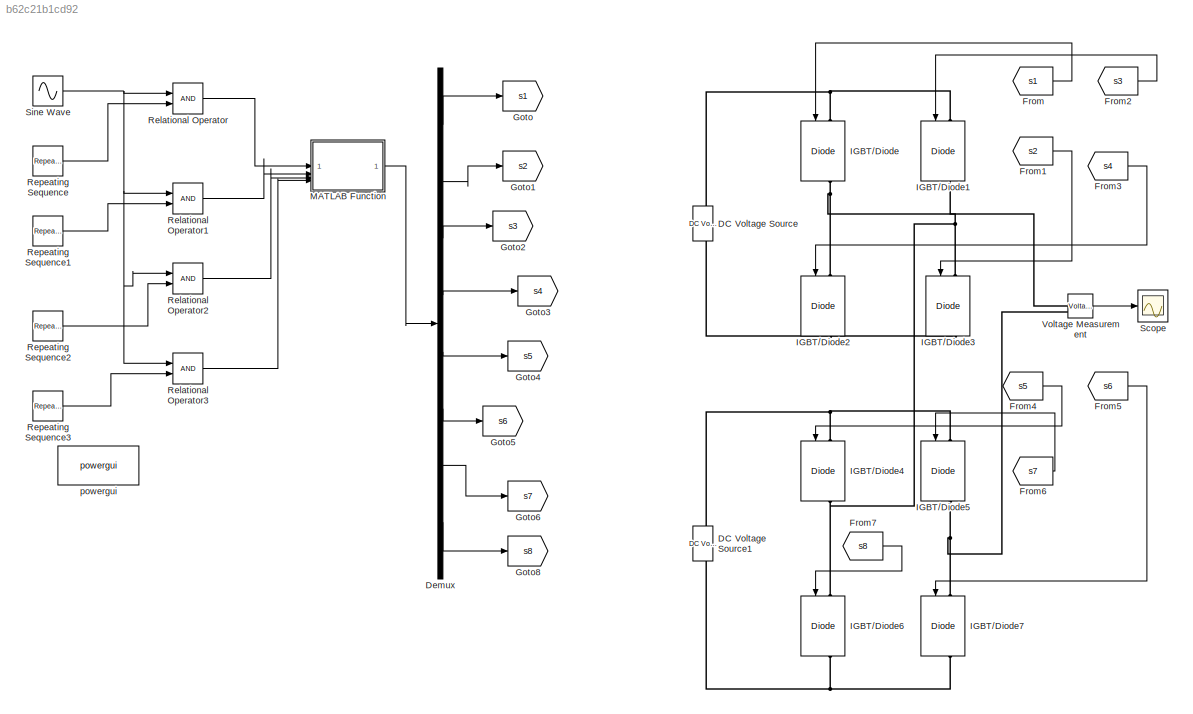
MODEL slx_b62c21b1cd92
KIND model
CONFIG AbsTol = auto
CONFIG EnableMultiTasking = off
CONFIG FixedStep = 5e-5
CONFIG MaxStep = auto
CONFIG MinStep = auto
CONFIG RelTol = 1e-3
CONFIG SampleTimeConstraint = Unconstrained
CONFIG SolverName = ode3
CONFIG StartTime = 0.0
CONFIG StopTime = 0.5
BLOCK [Reference] DC Voltage Source  REF=spsDCVoltageSourceLib/DC Voltage Source
  LibrarySourceBlock = sps_lib/Sources/DC Voltage Source
  SourceBlock = spsDCVoltageSourceLib/DC Voltage Source
  SourceType = DC Voltage Source
BLOCK [Reference] DC Voltage Source1  REF=spsDCVoltageSourceLib/DC Voltage Source
  LibrarySourceBlock = sps_lib/Sources/DC Voltage Source
  SourceBlock = spsDCVoltageSourceLib/DC Voltage Source
  SourceType = DC Voltage Source
BLOCK [Demux] Demux
  Outputs = 8
BLOCK [From] From
  GotoTag = s1
BLOCK [From] From1
  GotoTag = s2
BLOCK [From] From2
  GotoTag = s3
BLOCK [From] From3
  GotoTag = s4
BLOCK [From] From4
  GotoTag = s5
BLOCK [From] From5
  GotoTag = s6
BLOCK [From] From6
  GotoTag = s7
BLOCK [From] From7
  GotoTag = s8
BLOCK [Goto] Goto
  GotoTag = s1
BLOCK [Goto] Goto1
  GotoTag = s2
BLOCK [Goto] Goto2
  GotoTag = s3
BLOCK [Goto] Goto3
  GotoTag = s4
BLOCK [Goto] Goto4
  GotoTag = s5
BLOCK [Goto] Goto5
  GotoTag = s6
BLOCK [Goto] Goto6
  GotoTag = s7
BLOCK [Goto] Goto8
  GotoTag = s8
BLOCK [Reference] IGBT//Diode  REF=spsIGBTDiodeLib/IGBT//Diode
  LibrarySourceBlock = sps_lib/Power Electronics/IGBT//Diode
  NameLocation = left
  SourceBlock = spsIGBTDiodeLib/IGBT//Diode
  SourceType = IGBT/Diode
BLOCK [Reference] IGBT//Diode1  REF=spsIGBTDiodeLib/IGBT//Diode
  LibrarySourceBlock = sps_lib/Power Electronics/IGBT//Diode
  NameLocation = left
  SourceBlock = spsIGBTDiodeLib/IGBT//Diode
  SourceType = IGBT/Diode
BLOCK [Reference] IGBT//Diode2  REF=spsIGBTDiodeLib/IGBT//Diode
  LibrarySourceBlock = sps_lib/Power Electronics/IGBT//Diode
  NameLocation = left
  SourceBlock = spsIGBTDiodeLib/IGBT//Diode
  SourceType = IGBT/Diode
BLOCK [Reference] IGBT//Diode3  REF=spsIGBTDiodeLib/IGBT//Diode
  LibrarySourceBlock = sps_lib/Power Electronics/IGBT//Diode
  NameLocation = left
  SourceBlock = spsIGBTDiodeLib/IGBT//Diode
  SourceType = IGBT/Diode
BLOCK [Reference] IGBT//Diode4  REF=spsIGBTDiodeLib/IGBT//Diode
  LibrarySourceBlock = sps_lib/Power Electronics/IGBT//Diode
  NameLocation = left
  SourceBlock = spsIGBTDiodeLib/IGBT//Diode
  SourceType = IGBT/Diode
BLOCK [Reference] IGBT//Diode5  REF=spsIGBTDiodeLib/IGBT//Diode
  LibrarySourceBlock = sps_lib/Power Electronics/IGBT//Diode
  NameLocation = left
  SourceBlock = spsIGBTDiodeLib/IGBT//Diode
  SourceType = IGBT/Diode
BLOCK [Reference] IGBT//Diode6  REF=spsIGBTDiodeLib/IGBT//Diode
  LibrarySourceBlock = sps_lib/Power Electronics/IGBT//Diode
  NameLocation = left
  SourceBlock = spsIGBTDiodeLib/IGBT//Diode
  SourceType = IGBT/Diode
BLOCK [Reference] IGBT//Diode7  REF=spsIGBTDiodeLib/IGBT//Diode
  LibrarySourceBlock = sps_lib/Power Electronics/IGBT//Diode
  NameLocation = left
  SourceBlock = spsIGBTDiodeLib/IGBT//Diode
  SourceType = IGBT/Diode
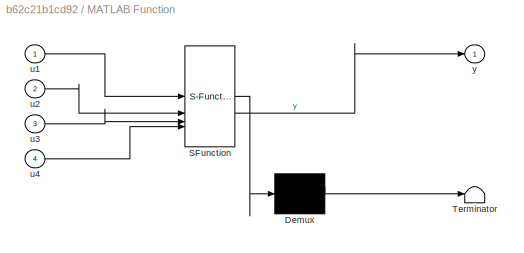
BLOCK [SubSystem] MATLAB Function
  ErrorFcn = Stateflow.Translate.translate
  LibrarySourceBlock = simulink/User-Defined\nFunctions/MATLAB Function
  PermitHierarchicalResolution = ExplicitOnly
  SFBlockType = MATLAB Function
  TreatAsAtomicUnit = on
BLOCK [Demux] MATLAB Function/ Demux 
  Outputs = 1
BLOCK [S-Function] MATLAB Function/ SFunction 
  EnableBusSupport = on
  FunctionName = sf_sfun
  PortCounts = [4 2]
  SFcnIsStateOwnerBlock = off
  SFunctionDeploymentMode = off
  Tag = Stateflow S-Function 2
BLOCK [Terminator] MATLAB Function/ Terminator 
BLOCK [Inport] MATLAB Function/u1
BLOCK [Inport] MATLAB Function/u2
  Port = 2
BLOCK [Inport] MATLAB Function/u3
  Port = 3
BLOCK [Inport] MATLAB Function/u4
  Port = 4
BLOCK [Outport] MATLAB Function/y
BLOCK [RelationalOperator] Relational Operator
  InputSameDT = off
  OutDataTypeStr = boolean
  RndMeth = Simplest
BLOCK [RelationalOperator] Relational Operator1
  InputSameDT = off
  OutDataTypeStr = boolean
  RndMeth = Simplest
BLOCK [RelationalOperator] Relational Operator2
  InputSameDT = off
  OutDataTypeStr = boolean
  RndMeth = Simplest
BLOCK [RelationalOperator] Relational Operator3
  InputSameDT = off
  OutDataTypeStr = boolean
  RndMeth = Simplest
BLOCK [Reference] Repeating Sequence  REF=simulink/Sources/Repeating
Sequence
  SourceBlock = simulink/Sources/Repeating\nSequence
  SourceType = Repeating table
BLOCK [Reference] Repeating Sequence1  REF=simulink/Sources/Repeating
Sequence
  SourceBlock = simulink/Sources/Repeating\nSequence
  SourceType = Repeating table
BLOCK [Reference] Repeating Sequence2  REF=simulink/Sources/Repeating
Sequence
  SourceBlock = simulink/Sources/Repeating\nSequence
  SourceType = Repeating table
BLOCK [Reference] Repeating Sequence3  REF=simulink/Sources/Repeating
Sequence
  SourceBlock = simulink/Sources/Repeating\nSequence
  SourceType = Repeating table
BLOCK [Scope] Scope
  Floating = off
  NumInputPorts = 1
  ScopeSpecificationString = Simulink.scopes.TimeScopeBlockCfg('CurrentConfiguration', extmgr.ConfigurationSet(extmgr.Configuration('Core','General UI',true),extmgr.Configuration('Core','Source UI',true),extmgr.Configuration('Sources','WiredSimulink',true),extmgr.Configuration('Visuals','Time Domain',true,'SerializedDisplays',{struct('MinYLimReal','-249.99999','MaxYLimReal','249.99999','YLabelReal','','MinYLimMag',' 0.00000',...<+1479ch>
BLOCK [Sin] Sine Wave
  Frequency = 2*pi*50
  SampleTime = 0
BLOCK [Reference] Voltage Measurement  REF=spsVoltageMeasurementLib/Voltage Measurement
  LibrarySourceBlock = sps_lib/Sensors and Measurements/Voltage Measurement
  SourceBlock = spsVoltageMeasurementLib/Voltage Measurement
  SourceType = Voltage Measurement
  UserDataPersistent = on
BLOCK [Reference] powergui  REF=sps_lib/powergui
  Priority = 1
  SourceBlock = sps_lib/powergui
  SourceType = PSB option menu block
LINE Demux:1 -> Goto:1
LINE Demux:2 -> Goto1:1
LINE Demux:3 -> Goto2:1
LINE Demux:4 -> Goto3:1
LINE Demux:5 -> Goto4:1
LINE Demux:6 -> Goto5:1
LINE Demux:7 -> Goto6:1
LINE Demux:8 -> Goto8:1
LINE From1:1 -> IGBT//Diode3:1
LINE From2:1 -> IGBT//Diode1:1
LINE From3:1 -> IGBT//Diode2:1
LINE From4:1 -> IGBT//Diode4:1
LINE From5:1 -> IGBT//Diode7:1
LINE From6:1 -> IGBT//Diode5:1
LINE From7:1 -> IGBT//Diode6:1
LINE From:1 -> IGBT//Diode:1
LINE MATLAB Function:1 -> Demux:1
LINE Relational Operator1:1 -> MATLAB Function:2
LINE Relational Operator2:1 -> MATLAB Function:3
LINE Relational Operator3:1 -> MATLAB Function:4
LINE Relational Operator:1 -> MATLAB Function:1
LINE Repeating Sequence1:1 -> Relational Operator1:2
LINE Repeating Sequence2:1 -> Relational Operator2:2
LINE Repeating Sequence3:1 -> Relational Operator3:2
LINE Repeating Sequence:1 -> Relational Operator:2
NET Sine Wave:1 -> Relational Operator1:1, Relational Operator2:1, Relational Operator3:1, Relational Operator:1
LINE Voltage Measurement:1 -> Scope:1
PNET net1: DC Voltage Source1:LConn1 -- IGBT//Diode6:RConn1 -- IGBT//Diode7:RConn1
PNET net2: DC Voltage Source1:RConn1 -- IGBT//Diode4:LConn1 -- IGBT//Diode5:LConn1
PNET net3: DC Voltage Source:LConn1 -- IGBT//Diode2:RConn1 -- IGBT//Diode3:RConn1
PNET net4: DC Voltage Source:RConn1 -- IGBT//Diode1:LConn1 -- IGBT//Diode:LConn1
PNET net5: IGBT//Diode1:RConn1 -- IGBT//Diode3:LConn1 -- IGBT//Diode4:RConn1 -- IGBT//Diode6:LConn1
PNET net6: IGBT//Diode2:LConn1 -- IGBT//Diode:RConn1 -- Voltage Measurement:LConn1
PNET net7: IGBT//Diode5:RConn1 -- IGBT//Diode7:LConn1 -- Voltage Measurement:LConn2
note: NET lines group one-source signal fan-out (src -> all destinations, sorted); 1:1 wires keep LINE; PNET lines group multi-terminal physical nets as a canonical sorted terminal list (undirected conserving connections); 2-terminal nets keep the pairwise PLINE form
CHART MATLAB Function states=1 transitions=1
  STATE_LABEL 'eML_blk_kernel()'
  STATE_LABEL 'SCRIPT:\nfunction y = fcn(u1,u2,u3,u4)\nSUM_sum=u1+u2+u3+u4;\ns1=0;\ns2=0;\ns3=0;\ns4=0;\ns5=0;\ns6=0;\ns7=0;\ns8=0;\nif (SUM_sum==4)\n    s1=1;\ns2=1;\ns3=0;\ns4=0;\ns5=1;\ns6=1;\ns7=0;\ns8=0;\nelseif(SUM_sum==3)\n    s1=1;\ns2=1;\ns3=0;\ns4=0;\ns5=1;\ns6=0;\ns7=1;\ns8=0;\nelseif(SUM_sum==2)\n    s1=1;\ns2=0;\ns3=1;\ns4=0;\ns5=1;\ns6=0;\ns7=1;\ns8=0;\nelseif(SUM_sum==1)\n    s1=0;\ns2=0;\ns3=1;\ns4=1;\ns5=1;\ns6=0;\ns7=1;\ns8=0;\nelseif(SUM_s...<+94ch>'
CHART  states=0 transitions=0
